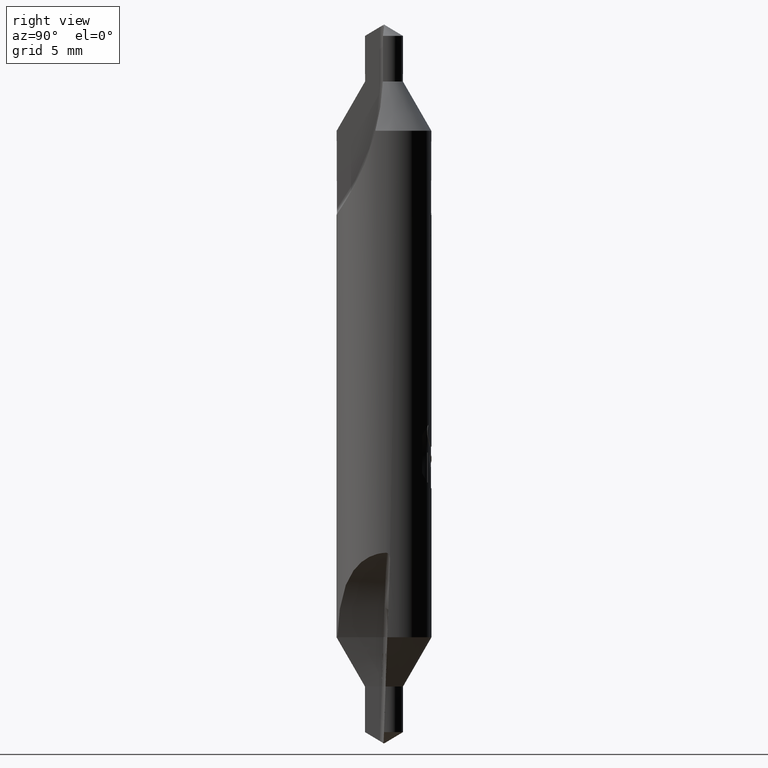
[diagram: clean part render]
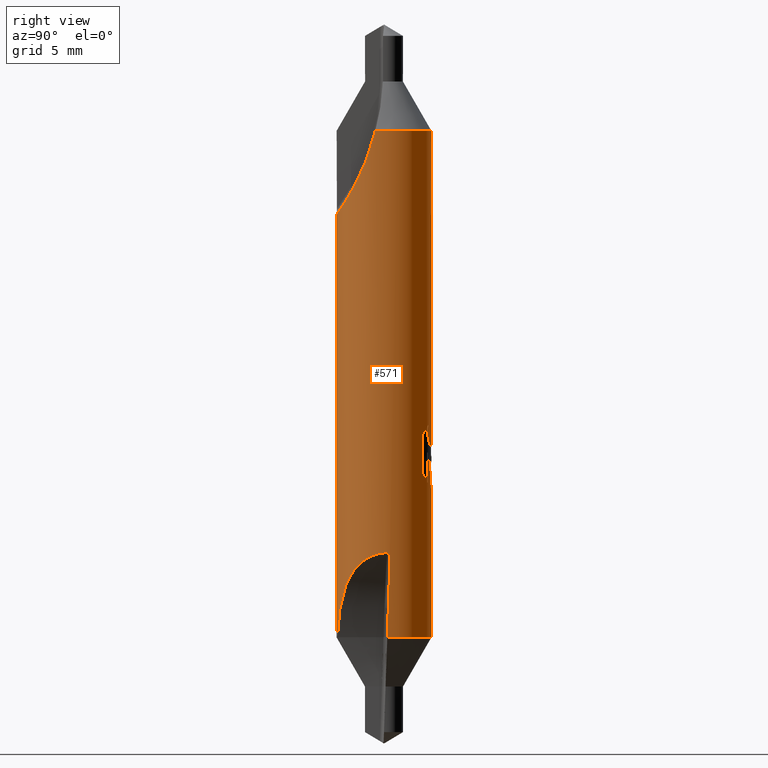
[diagram: same view with one face highlighted and labeled with its STEP entity id]
A machine part, right view. The second image highlights one B-rep face of the part: STEP entity #571.
In plain terms, the highlighted cylindrical surface (partial cylindrical patch) has radius 2 mm, axis along (-0, -0, 1).
Its self-contained STEP definition (entity closure, byte-faithful):
#447=EDGE_CURVE('',#1037,#995,#1200,.T.);
#511=EDGE_CURVE('',#915,#989,#1272,.T.);
#547=EDGE_CURVE('',#901,#1037,#1314,.T.);
#555=VERTEX_POINT('',#1322);
#571=ADVANCED_FACE('',(#1339),#1340,.T.);
#585=EDGE_CURVE('',#1007,#599,#1355,.T.);
#597=EDGE_CURVE('',#995,#723,#1367,.T.);
#599=VERTEX_POINT('',#1369);
#601=EDGE_CURVE('',#1069,#817,#1371,.T.);
#607=VERTEX_POINT('',#1378);
#617=EDGE_CURVE('',#1069,#887,#1390,.T.);
#631=VERTEX_POINT('',#1405);
#643=EDGE_CURVE('',#631,#555,#1417,.T.);
#647=EDGE_CURVE('',#649,#955,#1421,.T.);
#649=VERTEX_POINT('',#1423);
#661=EDGE_CURVE('',#1109,#649,#1435,.T.);
#679=VERTEX_POINT('',#1454);
#723=VERTEX_POINT('',#1501);
#765=EDGE_CURVE('',#1111,#1109,#1548,.T.);
#807=EDGE_CURVE('',#887,#955,#1594,.T.);
#817=VERTEX_POINT('',#1605);
#859=EDGE_CURVE('',#723,#915,#1652,.T.);
#861=EDGE_CURVE('',#817,#983,#1654,.T.);
#887=VERTEX_POINT('',#1683);
#895=EDGE_CURVE('',#901,#599,#1691,.T.);
#897=VERTEX_POINT('',#1693);
#901=VERTEX_POINT('',#1697);
#903=EDGE_CURVE('',#1049,#897,#1699,.T.);
#915=VERTEX_POINT('',#1712);
#919=EDGE_CURVE('',#1049,#1111,#1716,.T.);
#955=VERTEX_POINT('',#1758);
#961=EDGE_CURVE('',#983,#679,#1764,.T.);
#983=VERTEX_POINT('',#1787);
#989=VERTEX_POINT('',#1793);
#995=VERTEX_POINT('',#1800);
#1007=VERTEX_POINT('',#1812);
#1037=VERTEX_POINT('',#1845);
#1049=VERTEX_POINT('',#1857);
#1055=EDGE_CURVE('',#679,#631,#1865,.T.);
#1065=EDGE_CURVE('',#555,#1007,#1875,.T.);
#1069=VERTEX_POINT('',#1880);
#1089=EDGE_CURVE('',#989,#607,#1901,.T.);
#1101=EDGE_CURVE('',#897,#607,#1914,.T.);
#1109=VERTEX_POINT('',#1923);
#1111=VERTEX_POINT('',#1925);
#1200=B_SPLINE_CURVE_WITH_KNOTS('',3,(#2059,#2060,#2061,#2062),.UNSPECIFIED.,.F.,.F.,(4,4),(1.1391806579687,1.15039976872269),.UNSPECIFIED.);
#1272=CIRCLE('',#2253,2.0);
#1314=B_SPLINE_CURVE_WITH_KNOTS('',3,(#2348,#2349,#2350,#2351,#2352,#2353,#2354,#2355,#2356,#2357,#2358,#2359,#2360,#2361,#2362,#2363,#2364,#2365,#2366,#2367,#2368,#2369,#2370,#2371),.UNSPECIFIED.,.F.,.F.,(4,2,2,2,2,2,2,2,2,2,2,4),(9.30180473111237,10.1708844546265,11.0399641781407,11.6940415873927,12.3481189966446,12.6685788565356,12.9890387164265,13.2753931146789,13.5617475129312,13.8481019111836,14.1344563094359,14.4223159110577),.UNSPECIFIED.);
#1322=CARTESIAN_POINT('',(1.18863117050497,1.60846384494771,-17.3224379257528));
#1339=FACE_OUTER_BOUND('',#2442,.T.);
#1340=CYLINDRICAL_SURFACE('',#2443,2.0);
#1355=B_SPLINE_CURVE_WITH_KNOTS('',3,(#2471,#2472,#2473,#2474,#2475,#2476,#2477,#2478,#2479,#2480,#2481,#2482,#2483,#2484,#2485,#2486,#2487,#2488,#2489,#2490,#2491,#2492,#2493,#2494,#2495,#2496,#2497),.UNSPECIFIED.,.F.,.F.,(4,2,3,2,2,2,2,2,2,2,2,2,4),(-0.485873642793233,-0.242936821396616,0.0,0.242936821396616,0.485873642793232,0.731236930828593,0.976600218863954,1.21759351512921,1.45858681139446,1.70086238860411,1.94313796581376,2.1854135430234,2.42768912023305),.UNSPECIFIED.);
#1367=B_SPLINE_CURVE_WITH_KNOTS('',3,(#2572,#2573,#2574,#2575,#2576,#2577,#2578,#2579,#2580,#2581,#2582,#2583),.UNSPECIFIED.,.F.,.F.,(4,2,2,2,2,4),(1.15039976872269,1.18866122031565,1.23633884070357,1.30289778686339,1.39533220714547,1.43653490278568),.UNSPECIFIED.);
#1369=CARTESIAN_POINT('',(9.97965341540128E-016,2.0,-17.7741893710217));
#1371=B_SPLINE_CURVE_WITH_KNOTS('',3,(#2588,#2589,#2590,#2591,#2592,#2593,#2594,#2595,#2596,#2597,#2598,#2599),.UNSPECIFIED.,.F.,.F.,(4,2,2,2,2,4),(5.17227050094081,5.75264288035052,6.3241525616115,6.60990740224199,6.89566224287248,7.1789346831343),.UNSPECIFIED.);
#1378=CARTESIAN_POINT('',(7.03638546133518E-014,-2.0,-8.03531185095262));
#1390=LINE('',#2622,#2623);
#1405=CARTESIAN_POINT('',(1.18863117050497,1.60846384494771,-18.9003199400307));
#1417=LINE('',#2688,#2689);
#1421=ELLIPSE('',#2695,57.3074166956881,2.0);
#1423=CARTESIAN_POINT('',(1.98378657937635,0.254147216168674,-22.5414874514239));
#1435=B_SPLINE_CURVE_WITH_KNOTS('',3,(#2734,#2735,#2736,#2737,#2738,#2739,#2740,#2741,#2742,#2743,#2744,#2745),.UNSPECIFIED.,.F.,.F.,(4,2,2,2,2,4),(1.1504262470206,1.18868724582388,1.2363628174066,1.3029156073383,1.39533901337081,1.436564514309),.UNSPECIFIED.);
#1454=CARTESIAN_POINT('',(0.776498473645251,1.84310881947502,-19.3168261439534));
#1501=CARTESIAN_POINT('',(0.254147216168674,1.98378657937635,-7.75851255518873));
#1548=B_SPLINE_CURVE_WITH_KNOTS('',3,(#3072,#3073,#3074,#3075),.UNSPECIFIED.,.F.,.F.,(4,4),(1.13920711447827,1.1504262470206),.UNSPECIFIED.);
#1594=CIRCLE('',#3205,2.0);
#1605=CARTESIAN_POINT('',(0.257869446576408,1.98330616610809,-19.5311352285499));
#1652=ELLIPSE('',#3292,57.3074166956881,2.0);
#1654=ELLIPSE('',#3295,6.09598914673955,2.0);
#1683=CARTESIAN_POINT('',(-2.44921270764475E-016,2.0,-25.8215390318347));
#1691=LINE('',#3434,#3435);
#1693=CARTESIAN_POINT('',(2.44921270764476E-016,-2.0,-25.8215390318347));
#1697=CARTESIAN_POINT('',(-7.09664650601664E-014,2.0,-8.03531185095262));
#1699=CIRCLE('',#3447,2.0);
#1712=CARTESIAN_POINT('',(0.139605290905326,1.9951216410914,-4.4784609718347));
#1716=B_SPLINE_CURVE_WITH_KNOTS('',3,(#3510,#3511,#3512,#3513,#3514,#3515,#3516,#3517,#3518,#3519,#3520,#3521,#3522,#3523,#3524,#3525,#3526,#3527,#3528,#3529,#3530,#3531,#3532,#3533),.UNSPECIFIED.,.F.,.F.,(4,2,2,2,2,2,2,2,2,2,2,4),(9.30180473098247,10.1708844544966,11.0399641780108,11.6940415872628,12.3481189965147,12.6685788564057,12.9890387162966,13.275393114549,13.5617475128013,13.8481019110537,14.134456309306,14.4223159109278),.UNSPECIFIED.);
#1758=CARTESIAN_POINT('',(1.9951216410914,0.139605290905326,-25.8215390347779));
#1764=LINE('',#3618,#3619);
#1787=CARTESIAN_POINT('',(0.776498473645252,1.84310881947502,-18.0378554583156));
#1793=CARTESIAN_POINT('',(1.96603670965652,-0.367014517809514,-4.4784609718347));
#1800=CARTESIAN_POINT('',(0.103853411447915,1.99730179715801,-8.03925443487243));
#1812=CARTESIAN_POINT('',(0.710605979896582,1.86950237799667,-16.8646173388613));
#1845=CARTESIAN_POINT('',(0.0927012017595371,1.99785046667471,-8.03970199515271));
#1857=CARTESIAN_POINT('',(0.367014517809569,-1.96603670965651,-25.8215390347779));
#1865=B_SPLINE_CURVE_WITH_KNOTS('',3,(#3815,#3816,#3817,#3818,#3819,#3820),.UNSPECIFIED.,.F.,.F.,(4,2,4),(7.46218593910642,8.02873075012471,8.60625280250885),.UNSPECIFIED.);
#1875=B_SPLINE_CURVE_WITH_KNOTS('',3,(#3833,#3834,#3835,#3836,#3837,#3838),.UNSPECIFIED.,.F.,.F.,(4,2,4),(0.577522073831449,1.1550441476629,1.72158897631548),.UNSPECIFIED.);
#1880=CARTESIAN_POINT('',(-7.24729156774642E-017,2.0,-19.5588618606562));
#1901=B_SPLINE_CURVE_WITH_KNOTS('',3,(#3909,#3910,#3911,#3912,#3913,#3914,#3915,#3916,#3917,#3918,#3919,#3920,#3921,#3922,#3923,#3924,#3925,#3926,#3927,#3928,#3929,#3930,#3931,#3932),.UNSPECIFIED.,.F.,.F.,(4,2,2,2,2,2,2,2,2,2,2,4),(9.30180473111236,10.1708844546265,11.0399641781407,11.6940415873926,12.3481189966446,12.6685788565356,12.9890387164265,13.2753931146789,13.5617475129312,13.8481019111836,14.1344563094359,14.4223159110577),.UNSPECIFIED.);
#1914=LINE('',#3960,#3961);
#1923=CARTESIAN_POINT('',(1.99730179715801,0.103853411447916,-22.2607455717402));
#1925=CARTESIAN_POINT('',(1.9978504666747,0.0927012017595372,-22.2602980114599));
#2059=CARTESIAN_POINT('',(0.0927012017595371,1.99785046667471,-8.03970199515271));
#2060=CARTESIAN_POINT('',(0.0964173299866412,1.99767803657631,-8.03977178876256));
#2061=CARTESIAN_POINT('',(0.100136924489642,1.99749504279058,-8.03962289615347));
#2062=CARTESIAN_POINT('',(0.103853411447915,1.99730179715801,-8.03925443487243));
#2253=AXIS2_PLACEMENT_3D('',#4199,#4200,#4201);
#2348=CARTESIAN_POINT('',(-1.97386817961198,0.322248986833604,-4.27610679801779));
#2349=CARTESIAN_POINT('',(-1.96335641364115,0.386637150342109,-4.58387963646656));
#2350=CARTESIAN_POINT('',(-1.94707092815768,0.46728853313802,-4.88778016218112));
#2351=CARTESIAN_POINT('',(-1.89259501454194,0.653856171381738,-5.47201914355199));
#2352=CARTESIAN_POINT('',(-1.85426242163427,0.759750910720952,-5.75235120537762));
#2353=CARTESIAN_POINT('',(-1.75911345147841,0.956193167883764,-6.21075685649751));
#2354=CARTESIAN_POINT('',(-1.7037211909737,1.05521396676654,-6.42179352421249));
#2355=CARTESIAN_POINT('',(-1.55649565210555,1.2623248432869,-6.82466076476743));
#2356=CARTESIAN_POINT('',(-1.46399466817587,1.37016627325817,-7.01637483276808));
#2357=CARTESIAN_POINT('',(-1.30692099018019,1.51555635103273,-7.26074003160855));
#2358=CARTESIAN_POINT('',(-1.2449150901556,1.56763565648275,-7.34573680906197));
#2359=CARTESIAN_POINT('',(-1.10673181656546,1.66806470450702,-7.50550745584997));
#2360=CARTESIAN_POINT('',(-1.03040807959618,1.71630153367831,-7.58022565471822));
#2361=CARTESIAN_POINT('',(-0.886964434481921,1.79422076636279,-7.69966702507473));
#2362=CARTESIAN_POINT('',(-0.81148859480647,1.83008395575304,-7.75401065311518));
#2363=CARTESIAN_POINT('',(-0.647863349728904,1.89420012336617,-7.85157032210084));
#2364=CARTESIAN_POINT('',(-0.559699259275755,1.92242310034594,-7.89478144743573));
#2365=CARTESIAN_POINT('',(-0.375486079425088,1.96671927070333,-7.96533703139686));
#2366=CARTESIAN_POINT('',(-0.279247722889502,1.98281030928744,-7.99274863051417));
#2367=CARTESIAN_POINT('',(-0.0849580103877949,2.00057445543816,-8.0296096005433));
#2368=CARTESIAN_POINT('',(0.0130954283047081,2.00223343848672,-8.03905479908476));
#2369=CARTESIAN_POINT('',(0.204210869322812,1.9918594778997,-8.04079133353823));
#2370=CARTESIAN_POINT('',(0.302148523569138,1.97948603881439,-8.03303439100696));
#2371=CARTESIAN_POINT('',(0.39845705764275,1.95990611336734,-8.01611650052612));
#2442=EDGE_LOOP('',(#4281,#4282,#4283,#4284,#4285,#4286,#4287,#4288,#4289,#4290,#4291,#4292,#4293,#4294,#4295,#4296,#4297,#4298,#4299,#4300,#4301,#4302));
#2443=AXIS2_PLACEMENT_3D('',#4303,#4304,#4305);
#2471=CARTESIAN_POINT('',(0.592216501623604,1.91030877483319,-16.6999245012619));
#2472=CARTESIAN_POINT('',(0.648002147146689,1.89301461785306,-16.7560178403214));
#2473=CARTESIAN_POINT('',(0.696726601340236,1.87504491253674,-16.8270844132954));
#2474=CARTESIAN_POINT('',(0.761811715848994,1.84955788202965,-16.9838080109996));
#2475=CARTESIAN_POINT('',(0.778134206473617,1.84241883314182,-17.0695421638321));
#2476=CARTESIAN_POINT('',(0.778134206473617,1.84241883314182,-17.1505211042977));
#2477=CARTESIAN_POINT('',(0.778134206473617,1.84241883314182,-17.2315000447632));
#2478=CARTESIAN_POINT('',(0.761811715848994,1.84955788202965,-17.3172341975957));
#2479=CARTESIAN_POINT('',(0.696726601340236,1.87504491253674,-17.4739577952999));
#2480=CARTESIAN_POINT('',(0.648002147146689,1.89301461785306,-17.545024368274));
#2481=CARTESIAN_POINT('',(0.535873665934763,1.92777566682615,-17.657771309819));
#2482=CARTESIAN_POINT('',(0.46448389923468,1.94697182514683,-17.7070809051686));
#2483=CARTESIAN_POINT('',(0.306941730471709,1.9779361352813,-17.7729773416824));
#2484=CARTESIAN_POINT('',(0.220724182277433,1.98946477060588,-17.789520740819));
#2485=CARTESIAN_POINT('',(0.058998092434879,2.00074293963923,-17.789520740819));
#2486=CARTESIAN_POINT('',(-0.0265414090847375,2.00137175533347,-17.7735019904667));
#2487=CARTESIAN_POINT('',(-0.183719483471841,1.99309821664796,-17.7084807540072));
#2488=CARTESIAN_POINT('',(-0.255378150768086,1.98445443368289,-17.6594942008827));
#2489=CARTESIAN_POINT('',(-0.368775066044426,1.96654959753871,-17.5464879020878));
#2490=CARTESIAN_POINT('',(-0.418076283086926,1.95610430262412,-17.4747420877216));
#2491=CARTESIAN_POINT('',(-0.483630037594286,1.94093633242755,-17.3171565706766));
#2492=CARTESIAN_POINT('',(-0.499865066569051,1.93652650775142,-17.2312796300342));
#2493=CARTESIAN_POINT('',(-0.499865066569051,1.93652650775142,-17.0697625785611));
#2494=CARTESIAN_POINT('',(-0.483630037594286,1.94093633242755,-16.9838856379188));
#2495=CARTESIAN_POINT('',(-0.418076283086926,1.95610430262412,-16.8263001208738));
#2496=CARTESIAN_POINT('',(-0.368775066044426,1.96654959753871,-16.7545543065076));
#2497=CARTESIAN_POINT('',(-0.311926167614812,1.97552576949964,-16.6979012345396));
#2572=CARTESIAN_POINT('',(0.103853411447915,1.99730179715801,-8.03925443487243));
#2573=CARTESIAN_POINT('',(0.116528051084505,1.99664275576176,-8.03799784121028));
#2574=CARTESIAN_POINT('',(0.128758358327671,1.99588464209206,-8.03422720866604));
#2575=CARTESIAN_POINT('',(0.154716008331141,1.99405901822651,-8.02112661740451));
#2576=CARTESIAN_POINT('',(0.167671657321947,1.99299170487558,-8.0108633020347));
#2577=CARTESIAN_POINT('',(0.194851563495326,1.99054908928316,-7.9823902797009));
#2578=CARTESIAN_POINT('',(0.208934572884183,1.98909109493781,-7.96121810918868));
#2579=CARTESIAN_POINT('',(0.236727769139277,1.98600711621466,-7.90168140782162));
#2580=CARTESIAN_POINT('',(0.247706183644703,1.98460624691859,-7.86082911817511));
#2581=CARTESIAN_POINT('',(0.254169489212422,1.9837847428505,-7.7977246908097));
#2582=CARTESIAN_POINT('',(0.254829258957594,1.98369920139027,-7.77804370547215));
#2583=CARTESIAN_POINT('',(0.254147216168674,1.98378657937635,-7.75851255518873));
#2588=CARTESIAN_POINT('',(-1.35843628824083,1.46787290008041,-18.6756050286515));
#2589=CARTESIAN_POINT('',(-1.28410679887688,1.53666065641009,-18.8512408655797));
#2590=CARTESIAN_POINT('',(-1.1752316390482,1.62496042037709,-19.008456680345));
#2591=CARTESIAN_POINT('',(-0.926587938790952,1.77832615506037,-19.2576174132558));
#2592=CARTESIAN_POINT('',(-0.768833639014219,1.85565831936254,-19.3684040160817));
#2593=CARTESIAN_POINT('',(-0.502390388791747,1.93810401736757,-19.4815808269789));
#2594=CARTESIAN_POINT('',(-0.408653031501487,1.96019099692429,-19.5107741127929));
#2595=CARTESIAN_POINT('',(-0.217688225072944,1.99046674961777,-19.5495330623302));
#2596=CARTESIAN_POINT('',(-0.120454862905055,1.99864041185131,-19.5590813925722));
#2597=CARTESIAN_POINT('',(0.0692058274029636,2.00103135231402,-19.5590813925722));
#2598=CARTESIAN_POINT('',(0.16581480618703,1.99541875307156,-19.549694930516));
#2599=CARTESIAN_POINT('',(0.260863197533803,1.9829146204949,-19.5305350314592));
#2622=CARTESIAN_POINT('',(-2.44921270764475E-016,2.0,-23.5823085468347));
#2623=VECTOR('',#4351,1.0);
#2688=CARTESIAN_POINT('',(1.18863117050497,1.60846384494771,-18.1113789328917));
#2689=VECTOR('',#4371,1.0);
#2695=AXIS2_PLACEMENT_3D('',#4375,#4376,#4377);
#2734=CARTESIAN_POINT('',(1.99730179715801,0.103853411447916,-22.2607455717402));
#2735=CARTESIAN_POINT('',(1.99664276356092,0.116527901091609,-22.2620021505317));
#2736=CARTESIAN_POINT('',(1.99588466247109,0.128758024809754,-22.2657727027769));
#2737=CARTESIAN_POINT('',(1.99405910788319,0.154714788070204,-22.2788726822031));
#2738=CARTESIAN_POINT('',(1.99299185472848,0.167669845679753,-22.2891352442313));
#2739=CARTESIAN_POINT('',(1.99054943651033,0.194847900990907,-22.3176052795536));
#2740=CARTESIAN_POINT('',(1.98909158686647,0.208929864511877,-22.3387744717397));
#2741=CARTESIAN_POINT('',(1.98600784587091,0.236721575210587,-22.3983016376017));
#2742=CARTESIAN_POINT('',(1.98460696413857,0.247700483607261,-22.4391467596792));
#2743=CARTESIAN_POINT('',(1.98378483563165,0.254168784728745,-22.5022543926735));
#2744=CARTESIAN_POINT('',(1.98369915485912,0.254829622163924,-22.5219459002719));
#2745=CARTESIAN_POINT('',(1.98378657937635,0.254147216168674,-22.5414874514239));
#3072=CARTESIAN_POINT('',(1.9978504666747,0.0927012017595372,-22.2602980114599));
#3073=CARTESIAN_POINT('',(1.99767803690976,0.0964173228004063,-22.2602282179851));
#3074=CARTESIAN_POINT('',(1.99749504316588,0.100136917271954,-22.2603771097436));
#3075=CARTESIAN_POINT('',(1.99730179715801,0.103853411447916,-22.2607455717402));
#3205=AXIS2_PLACEMENT_3D('',#4539,#4540,#4541);
#3292=AXIS2_PLACEMENT_3D('',#4614,#4615,#4616);
#3295=AXIS2_PLACEMENT_3D('',#4617,#4618,#4619);
#3434=CARTESIAN_POINT('',(-2.44921270764475E-016,2.0,-23.5823085468347));
#3435=VECTOR('',#4655,1.0);
#3447=AXIS2_PLACEMENT_3D('',#4656,#4657,#4658);
#3510=CARTESIAN_POINT('',(0.322248986833603,-1.97386817961198,-26.0238932085949));
#3511=CARTESIAN_POINT('',(0.386637150342106,-1.96335641364115,-25.7161203701461));
#3512=CARTESIAN_POINT('',(0.467288533138022,-1.94707092815768,-25.4122198444315));
#3513=CARTESIAN_POINT('',(0.65385617138174,-1.89259501454194,-24.8279808630606));
#3514=CARTESIAN_POINT('',(0.759750910720949,-1.85426242163428,-24.547648801235));
#3515=CARTESIAN_POINT('',(0.956193167883763,-1.75911345147841,-24.0892431501151));
#3516=CARTESIAN_POINT('',(1.05521396676653,-1.7037211909737,-23.8782064824002));
#3517=CARTESIAN_POINT('',(1.26232484328689,-1.55649565210555,-23.4753392418452));
#3518=CARTESIAN_POINT('',(1.37016627325817,-1.46399466817588,-23.2836251738446));
#3519=CARTESIAN_POINT('',(1.51555635103273,-1.30692099018019,-23.0392599750041));
#3520=CARTESIAN_POINT('',(1.56763565648275,-1.2449150901556,-22.9542631975507));
#3521=CARTESIAN_POINT('',(1.66806470450702,-1.10673181656546,-22.7944925507627));
#3522=CARTESIAN_POINT('',(1.7163015336783,-1.03040807959619,-22.7197743518944));
#3523=CARTESIAN_POINT('',(1.79422076636279,-0.886964434481924,-22.6003329815379));
#3524=CARTESIAN_POINT('',(1.83008395575304,-0.811488594806469,-22.5459893534975));
#3525=CARTESIAN_POINT('',(1.89420012336617,-0.647863349728903,-22.4484296845118));
#3526=CARTESIAN_POINT('',(1.92242310034594,-0.559699259275756,-22.4052185591769));
#3527=CARTESIAN_POINT('',(1.96671927070333,-0.375486079425089,-22.3346629752158));
#3528=CARTESIAN_POINT('',(1.98281030928744,-0.279247722889503,-22.3072513760985));
#3529=CARTESIAN_POINT('',(2.00057445543816,-0.0849580103877959,-22.2703904060693));
#3530=CARTESIAN_POINT('',(2.00223343848672,0.0130954283047075,-22.2609452075279));
#3531=CARTESIAN_POINT('',(1.9918594778997,0.204210869322813,-22.2592086730744));
#3532=CARTESIAN_POINT('',(1.97948603881439,0.302148523569141,-22.2669656156057));
#3533=CARTESIAN_POINT('',(1.95990611336734,0.398457057642753,-22.2838835060865));
#3618=CARTESIAN_POINT('',(0.776498473645252,1.84310881947502,-18.6773408011345));
#3619=VECTOR('',#4764,1.0);
#3815=CARTESIAN_POINT('',(0.538115048733371,1.9262482172157,-19.4449849189933));
#3816=CARTESIAN_POINT('',(0.715536463140263,1.87668391102608,-19.3700406108199));
#3817=CARTESIAN_POINT('',(0.873660497705341,1.80474827857328,-19.2596214504387));
#3818=CARTESIAN_POINT('',(1.12364895120922,1.66090643929508,-19.0101271455771));
#3819=CARTESIAN_POINT('',(1.23326722857064,1.57758922266222,-18.8521419031242));
#3820=CARTESIAN_POINT('',(1.30791612669514,1.51306160004502,-18.6758367397205));
#3833=CARTESIAN_POINT('',(1.307916133371,1.51306159427429,-17.5469211374221));
#3834=CARTESIAN_POINT('',(1.23326723246404,1.57758921987216,-17.3706159677828));
#3835=CARTESIAN_POINT('',(1.12364895102548,1.66090643990066,-17.2126307196997));
#3836=CARTESIAN_POINT('',(0.873660488410398,1.80474828343117,-16.9631364065066));
#3837=CARTESIAN_POINT('',(0.715536448500463,1.8766839171544,-16.8527172426452));
#3838=CARTESIAN_POINT('',(0.538115028203115,1.92624822295102,-16.7777729321669));
#3909=CARTESIAN_POINT('',(1.97386817961198,-0.322248986833604,-4.27610679801779));
#3910=CARTESIAN_POINT('',(1.96335641364115,-0.386637150342108,-4.58387963646657));
#3911=CARTESIAN_POINT('',(1.94707092815768,-0.46728853313802,-4.88778016218112));
#3912=CARTESIAN_POINT('',(1.89259501454194,-0.653856171381738,-5.47201914355199));
#3913=CARTESIAN_POINT('',(1.85426242163427,-0.759750910720951,-5.75235120537763));
#3914=CARTESIAN_POINT('',(1.75911345147841,-0.956193167883764,-6.21075685649751));
#3915=CARTESIAN_POINT('',(1.7037211909737,-1.05521396676654,-6.4217935242125));
#3916=CARTESIAN_POINT('',(1.55649565210555,-1.2623248432869,-6.82466076476743));
#3917=CARTESIAN_POINT('',(1.46399466817587,-1.37016627325817,-7.01637483276808));
#3918=CARTESIAN_POINT('',(1.30692099018019,-1.51555635103273,-7.26074003160855));
#3919=CARTESIAN_POINT('',(1.2449150901556,-1.56763565648275,-7.34573680906198));
#3920=CARTESIAN_POINT('',(1.10673181656546,-1.66806470450702,-7.50550745584998));
#3921=CARTESIAN_POINT('',(1.03040807959618,-1.71630153367831,-7.58022565471823));
#3922=CARTESIAN_POINT('',(0.886964434481921,-1.79422076636279,-7.69966702507473));
#3923=CARTESIAN_POINT('',(0.81148859480647,-1.83008395575304,-7.75401065311518));
#3924=CARTESIAN_POINT('',(0.647863349728905,-1.89420012336617,-7.85157032210084));
#3925=CARTESIAN_POINT('',(0.559699259275755,-1.92242310034594,-7.89478144743573));
#3926=CARTESIAN_POINT('',(0.375486079425088,-1.96671927070333,-7.96533703139687));
#3927=CARTESIAN_POINT('',(0.279247722889503,-1.98281030928743,-7.99274863051418));
#3928=CARTESIAN_POINT('',(0.0849580103877956,-2.00057445543816,-8.02960960054331));
#3929=CARTESIAN_POINT('',(-0.0130954283047072,-2.00223343848672,-8.03905479908477));
#3930=CARTESIAN_POINT('',(-0.204210869322812,-1.9918594778997,-8.04079133353824));
#3931=CARTESIAN_POINT('',(-0.302148523569139,-1.97948603881439,-8.03303439100696));
#3932=CARTESIAN_POINT('',(-0.398457057642752,-1.95990611336734,-8.01611650052612));
#3960=CARTESIAN_POINT('',(2.44921270764476E-016,-2.0,-23.5823085468347));
#3961=VECTOR('',#4897,1.0);
#4199=CARTESIAN_POINT('',(0.0,0.0,-4.4784609718347));
#4200=DIRECTION('',(0.0,0.0,-1.0));
#4201=DIRECTION('',(0.0,1.0,0.0));
#4281=ORIENTED_EDGE('',*,*,#895,.F.);
#4282=ORIENTED_EDGE('',*,*,#547,.T.);
#4283=ORIENTED_EDGE('',*,*,#447,.T.);
#4284=ORIENTED_EDGE('',*,*,#597,.T.);
#4285=ORIENTED_EDGE('',*,*,#859,.T.);
#4286=ORIENTED_EDGE('',*,*,#511,.T.);
#4287=ORIENTED_EDGE('',*,*,#1089,.T.);
#4288=ORIENTED_EDGE('',*,*,#1101,.F.);
#4289=ORIENTED_EDGE('',*,*,#903,.F.);
#4290=ORIENTED_EDGE('',*,*,#919,.T.);
#4291=ORIENTED_EDGE('',*,*,#765,.T.);
#4292=ORIENTED_EDGE('',*,*,#661,.T.);
#4293=ORIENTED_EDGE('',*,*,#647,.T.);
#4294=ORIENTED_EDGE('',*,*,#807,.F.);
#4295=ORIENTED_EDGE('',*,*,#617,.F.);
#4296=ORIENTED_EDGE('',*,*,#601,.T.);
#4297=ORIENTED_EDGE('',*,*,#861,.T.);
#4298=ORIENTED_EDGE('',*,*,#961,.T.);
#4299=ORIENTED_EDGE('',*,*,#1055,.T.);
#4300=ORIENTED_EDGE('',*,*,#643,.T.);
#4301=ORIENTED_EDGE('',*,*,#1065,.T.);
#4302=ORIENTED_EDGE('',*,*,#585,.T.);
#4303=CARTESIAN_POINT('',(0.0,0.0,-23.5823085468347));
#4304=DIRECTION('',(-0.0,-0.0,1.0));
#4305=DIRECTION('',(0.0,1.0,0.0));
#4351=DIRECTION('',(0.0,0.0,-1.0));
#4371=DIRECTION('',(-0.0,-0.0,1.0));
#4375=CARTESIAN_POINT('',(0.0,0.0,-29.819311504778));
#4376=DIRECTION('',(0.0,0.999390827019096,-0.0348994967025007));
#4377=DIRECTION('',(0.0,0.0348994967025007,0.999390827019096));
#4539=CARTESIAN_POINT('',(0.0,0.0,-25.8215390318347));
#4540=DIRECTION('',(0.0,0.0,-1.0));
#4541=DIRECTION('',(0.0,1.0,0.0));
#4614=CARTESIAN_POINT('',(0.0,0.0,-0.480688501834631));
#4615=DIRECTION('',(0.999390827019096,0.0,0.0348994967025007));
#4616=DIRECTION('',(0.0348994967025007,0.0,-0.999390827019096));
#4617=CARTESIAN_POINT('',(0.0,0.0,-20.2736143568594));
#4618=DIRECTION('',(0.944648353914092,0.0,-0.328084573619969));
#4619=DIRECTION('',(0.328084573619968,-0.0,0.944648353914092));
#4655=DIRECTION('',(0.0,0.0,-1.0));
#4656=CARTESIAN_POINT('',(0.0,0.0,-25.8215390318347));
#4657=DIRECTION('',(0.0,0.0,-1.0));
#4658=DIRECTION('',(0.0,1.0,0.0));
#4764=DIRECTION('',(0.0,0.0,-1.0));
#4897=DIRECTION('',(-0.0,-0.0,1.0));